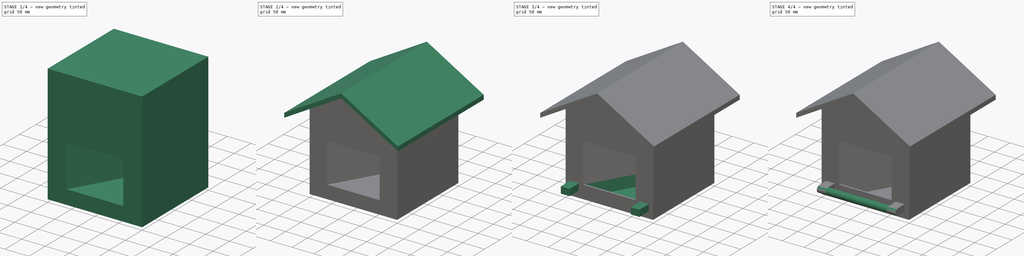
[diagram: build sequence overview — one tinted view per stage of 4, left to right]
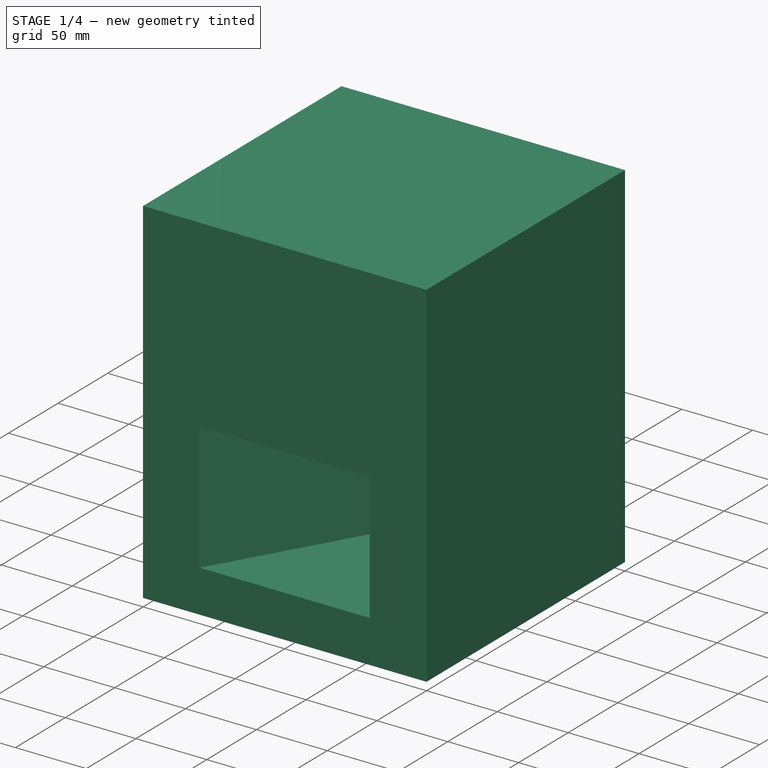
[diagram: stage 1 of 4 — iso view after this stage's code; geometry added in this stage tinted green]
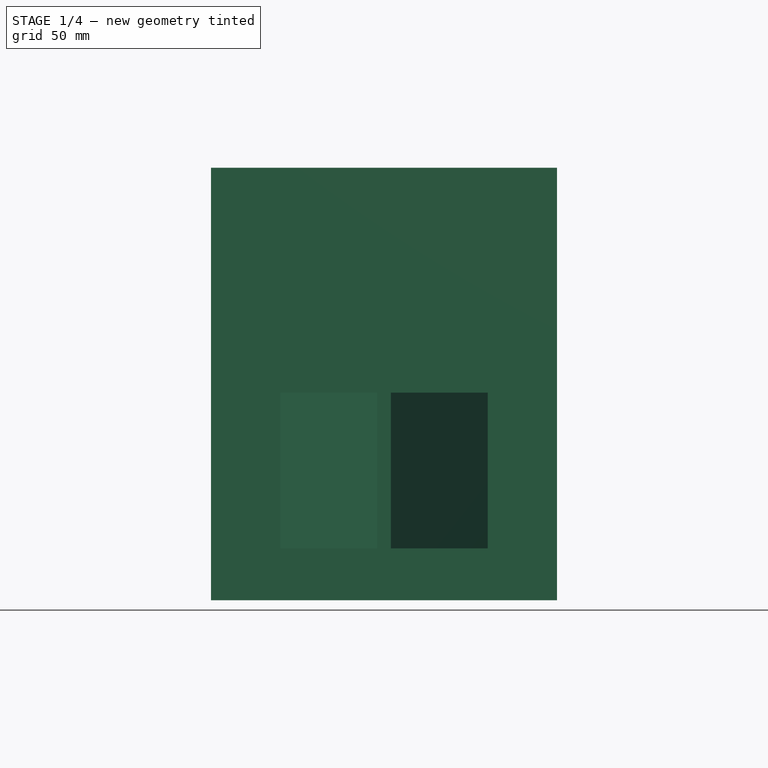
[diagram: stage 1 of 4 — front view after this stage's code; geometry added in this stage tinted green]
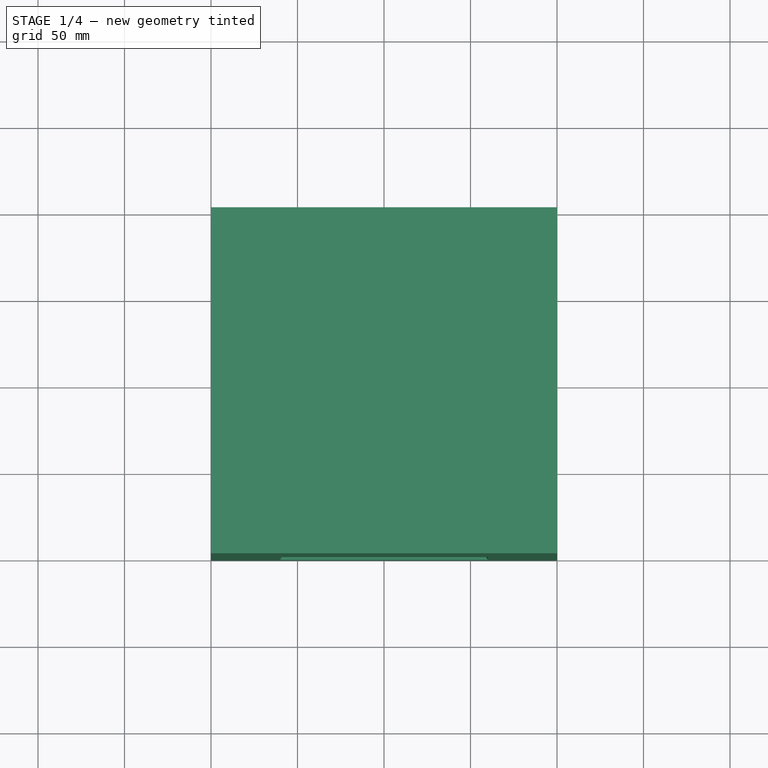
[diagram: stage 1 of 4 — top view after this stage's code; geometry added in this stage tinted green]
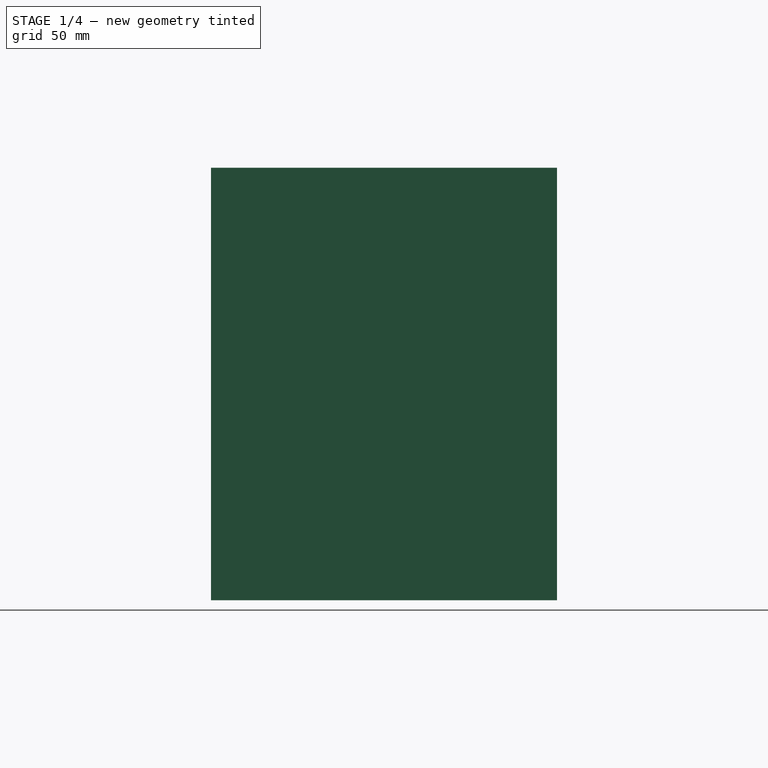
[diagram: stage 1 of 4 — right view after this stage's code; geometry added in this stage tinted green]
FCSTD DOCUMENT  (FreeCAD 0.20R29177 +426 (Git))
Label: concept
License: All rights reserved
LicenseURL: http://en.wikipedia.org/wiki/All_rights_reserved
objects: Sketcher::SketchObject×10, PartDesign::Pocket×7, PartDesign::Pad×6, PartDesign::Body×1
note: 37 computed .brp shape members not serialized (recipe doc carries the construction recipe); baked Part::Feature solids carry a one-line shape summary decoded from their .brp

FEATURE [Sketcher::SketchObject] Sketch
  FullyConstrained = true
  MapMode = 5
  Support = -> [XY_Plane]
  sketch-geometry (4):
    g0: LineSegment StartX=0 StartY=200 StartZ=0 EndX=200 EndY=200 EndZ=0
    g1: LineSegment StartX=200 StartY=200 StartZ=0 EndX=200 EndY=0 EndZ=0
    g2: LineSegment StartX=0 StartY=200 StartZ=0 EndX=0 EndY=0 EndZ=0
    g3: LineSegment StartX=0 StartY=0 StartZ=0 EndX=200 EndY=0 EndZ=0
  constraints (12):
    c: PointOnObject(g0,g-2)
    c: Horizontal(g0)
    c: Coincident(g1,g0)
    c: Vertical(g1)
    c: Coincident(g2,g0)
    c: PointOnObject(g2,g-2)
    c: PointOnObject(g2,g-1)
    c: Horizontal(g1,g2)
    c: DistanceX(g0,g0) = 200
    c: DistanceY(g2,g2) = 200
    c: Coincident(g3,g2)
    c: Coincident(g3,g1)
FEATURE [PartDesign::Pad] Pad
  Direction = (0,0,1)
  Length = 250
  Length2 = 10
  Profile = -> Sketch
  ReferenceAxis = -> Sketch [N_Axis]
  Type = 0
FEATURE [Sketcher::SketchObject] Sketch001
  ExternalGeometry = -> [Pad]
  FullyConstrained = true
  MapMode = 5
  Placement = pos=(0,0,0) rot=(1,0,0;1.5708rad)
  Support = -> [Pad]
  sketch-geometry (5):
    g0: LineSegment StartX=40 StartY=120 StartZ=0 EndX=160 EndY=120 EndZ=0
    g1: LineSegment StartX=160 StartY=120 StartZ=0 EndX=160 EndY=30 EndZ=0
    g2: LineSegment StartX=160 StartY=30 StartZ=0 EndX=40 EndY=30 EndZ=0
    g3: LineSegment StartX=40 StartY=30 StartZ=0 EndX=40 EndY=120 EndZ=0
    g4: LineSegment StartX=100 StartY=250 StartZ=0 EndX=100 EndY=0 EndZ=0
  constraints (14):
    c: Coincident(g0,g1)
    c: Coincident(g1,g2)
    c: Coincident(g2,g3)
    c: Coincident(g3,g0)
    c: Horizontal(g0)
    c: Horizontal(g2)
    c: Vertical(g1)
    c: Vertical(g3)
    c: Symmetric(g-3,g-3,g4)
    c: PointOnObject(g4,g-1)
    c: Symmetric(g0,g0,g4)
    c: DistanceX(g0,g0) = 120
    c: DistanceY(g3,g3) = 90
    c: DistanceY(g-1,g2) = 30
FEATURE [PartDesign::Pocket] Pocket
  BaseFeature = -> Pad
  Direction = (0,1,-2e-16)
  Length = 100
  Length2 = 5
  Profile = -> Sketch001
  ReferenceAxis = -> Sketch001 [N_Axis]
  Type = 0
FEATURE [Sketcher::SketchObject] Sketch005
  ExternalGeometry = -> [Pocket]
  FullyConstrained = true
  MapMode = 5
  Placement = pos=(0,6.6e-15,30) rot=(0,0,1;0rad)
  Support = -> [Pocket]
  sketch-geometry (6):
    g0: LineSegment StartX=40 StartY=0 StartZ=0 EndX=96 EndY=96.9948 EndZ=0
    g1: LineSegment StartX=40 StartY=100 StartZ=0 EndX=40 EndY=0 EndZ=0
    g2: LineSegment StartX=104 StartY=96.9948 StartZ=0 EndX=160 EndY=0 EndZ=0
    g3: LineSegment StartX=160 StartY=0 StartZ=0 EndX=160 EndY=100 EndZ=0
    g4: LineSegment StartX=96 StartY=96.9948 StartZ=0 EndX=104 EndY=96.9948 EndZ=0
    g5: LineSegment StartX=40 StartY=100 StartZ=0 EndX=160 EndY=100 EndZ=0
  constraints (14):
    c: Coincident(g0,g-3)
    c: Coincident(g3,g2)
    c: Coincident(g2,g-3)
    c: Coincident(g0,g1)
    c: Horizontal(g0,g2)
    c: Coincident(g3,g-4)
    c: Coincident(g1,g-4)
    c: Coincident(g4,g0)
    c: Coincident(g4,g2)
    c: DistanceX(g4,g4) = 8
    c: Equal(g0,g2)
    c: Angle(g-3,g0) = 1.0472
    c: Coincident(g5,g1)
    c: Coincident(g5,g3)
FEATURE [PartDesign::Pad] Pad001
  BaseFeature = -> Pocket
  Direction = (0,2e-16,1)
  Length = 90
  Length2 = 10
  Profile = -> Sketch005
  ReferenceAxis = -> Sketch005 [N_Axis]
  Type = 0
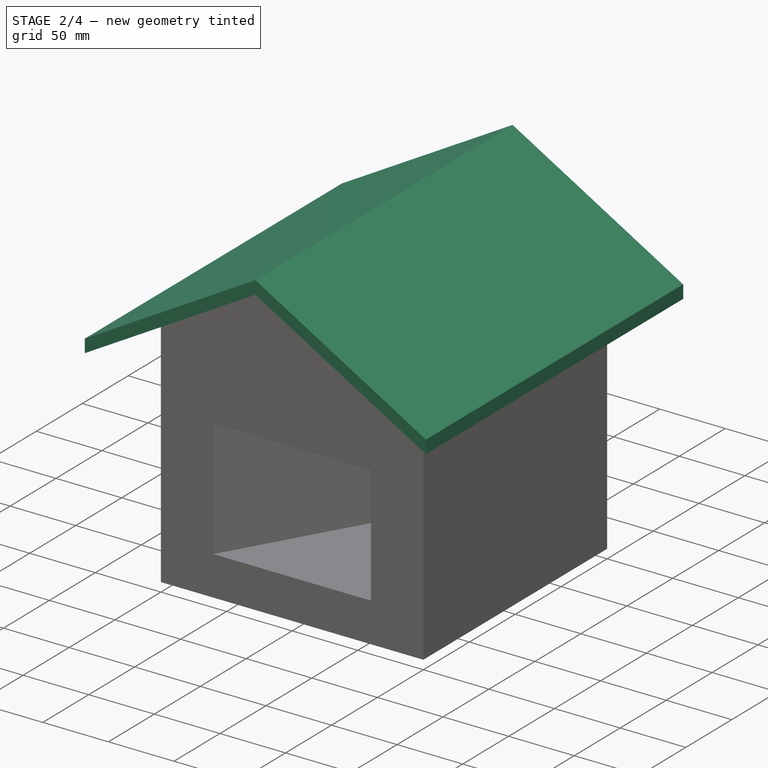
[diagram: stage 2 of 4 — iso view after this stage's code; geometry added in this stage tinted green]
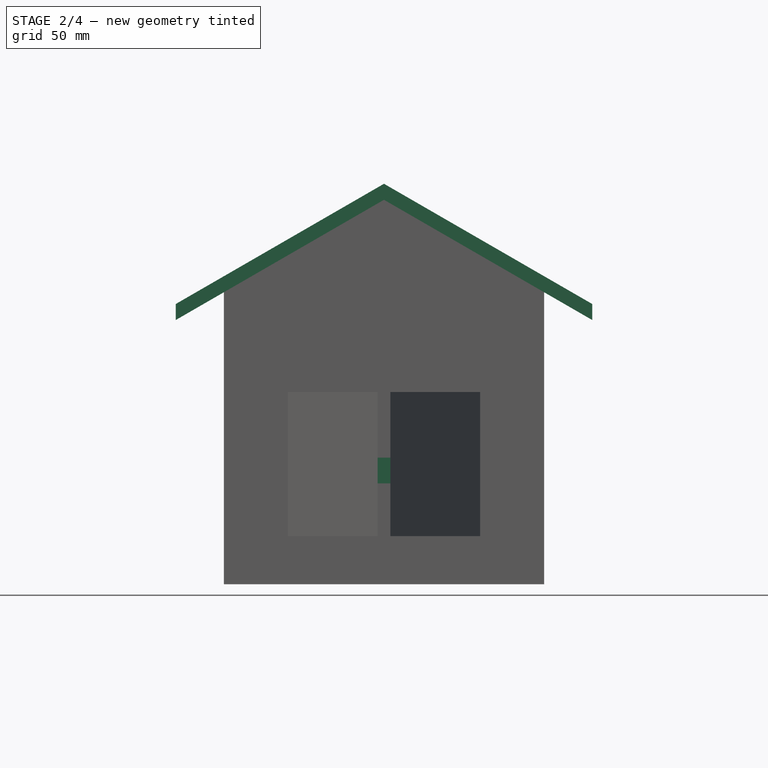
[diagram: stage 2 of 4 — front view after this stage's code; geometry added in this stage tinted green]
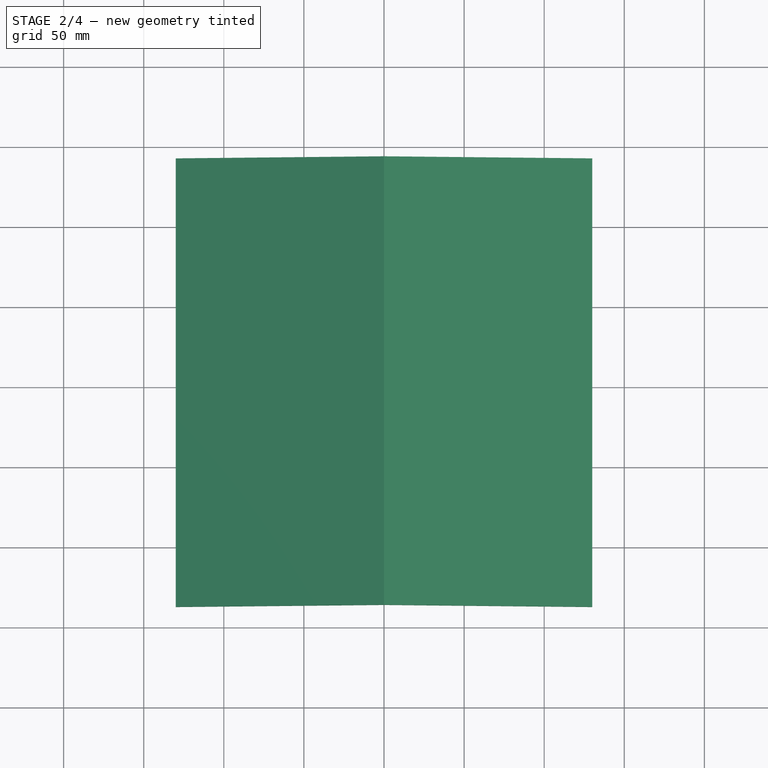
[diagram: stage 2 of 4 — top view after this stage's code; geometry added in this stage tinted green]
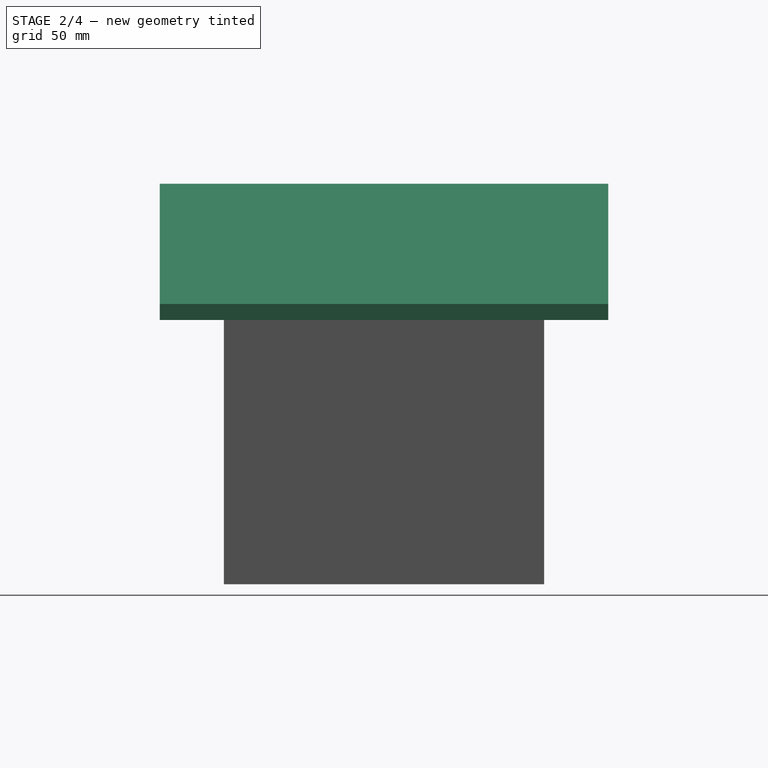
[diagram: stage 2 of 4 — right view after this stage's code; geometry added in this stage tinted green]
FEATURE [Sketcher::SketchObject] Sketch004
  AttachmentOffset = pos=(0,0,40) rot=(0,0,1;0rad)
  FullyConstrained = true
  MapMode = 5
  Placement = pos=(0,-40,8.9e-15) rot=(1,0,0;1.5708rad)
  Support = -> [Pad001,XZ_Plane]
  sketch-geometry (6):
    g0: LineSegment StartX=100 StartY=250 StartZ=0 EndX=-30 EndY=174.944 EndZ=0
    g1: LineSegment StartX=100 StartY=250 StartZ=0 EndX=230 EndY=174.944 EndZ=0
    g2: LineSegment StartX=100 StartY=240 StartZ=0 EndX=-30 EndY=164.944 EndZ=0
    g3: LineSegment StartX=100 StartY=240 StartZ=0 EndX=230 EndY=164.944 EndZ=0
    g4: LineSegment StartX=230 StartY=174.944 StartZ=0 EndX=230 EndY=164.944 EndZ=0
    g5: LineSegment StartX=-30 StartY=164.944 StartZ=0 EndX=-30 EndY=174.944 EndZ=0
  constraints (18):
    c: Coincident(g1,g0)
    c: Horizontal(g0,g1)
    c: Equal(g0,g1)
    c: DistanceX(g0,g-1) = 30
    c: Coincident(g3,g2)
    c: Coincident(g4,g1)
    c: Coincident(g4,g3)
    c: Vertical(g4)
    c: Coincident(g5,g2)
    c: Coincident(g5,g0)
    c: Vertical(g5)
    c: Equal(g4,g5)
    c: Vertical(g0,g2)
    c: Equal(g2,g0)
    c: DistanceY(g4,g4) = 10
    c: DistanceY(g-1,g0) = 250
    c: DistanceX(g2,g3) = 260
    c: Angle(g-2,g0) = 2.0944
FEATURE [PartDesign::Pad] Pad002
  BaseFeature = -> Pad001
  Direction = (0,-1,2e-16)
  Length = 280
  Length2 = 10
  Profile = -> Sketch004
  ReferenceAxis = -> Sketch004 [N_Axis]
  Reversed = true
  Type = 0
FEATURE [PartDesign::Pocket] Pocket001
  BaseFeature = -> Pad002
  Direction = (0,1,0)
  Length = 5
  Length2 = 5
  Profile = -> Pad002 [Face24,Face21]
  Type = 1
FEATURE [Sketcher::SketchObject] Sketch006
  ExternalGeometry = -> [Pocket001]
  FullyConstrained = true
  MapMode = 5
  Placement = pos=(0,96.9948,-2.13e-14) rot=(1,0,0;1.5708rad)
  Support = -> [Pocket001]
  sketch-geometry (6):
    g0: LineSegment StartX=96 StartY=79 StartZ=0 EndX=104 EndY=79 EndZ=0
    g1: LineSegment StartX=104 StartY=79 StartZ=0 EndX=104 EndY=63 EndZ=0
    g2: LineSegment StartX=104 StartY=63 StartZ=0 EndX=96 EndY=63 EndZ=0
    g3: LineSegment StartX=96 StartY=63 StartZ=0 EndX=96 EndY=79 EndZ=0
    g4: LineSegment StartX=96 StartY=71 StartZ=0 EndX=104 EndY=71 EndZ=0
    g5: LineSegment StartX=96 StartY=75 StartZ=0 EndX=104 EndY=75 EndZ=0
  constraints (17):
    c: Coincident(g0,g1)
    c: Coincident(g1,g2)
    c: Coincident(g2,g3)
    c: Coincident(g3,g0)
    c: Horizontal(g0)
    c: Horizontal(g2)
    c: Vertical(g1)
    c: Vertical(g3)
    c: DistanceY(g3,g3) = 16
    c: DistanceX(g0,g0) = 8
    c: PointOnObject(g4,g1)
    c: Horizontal(g4)
    c: PointOnObject(g5,g1)
    c: Horizontal(g5)
    c: Symmetric(g0,g2,g4)
    c: Symmetric(g0,g4,g5)
    c: Symmetric(g-3,g-3,g5)
FEATURE [PartDesign::Pocket] Pocket002
  BaseFeature = -> Pocket001
  Direction = (0,1,-2e-16)
  Length = 4
  Length2 = 5
  Profile = -> Sketch006
  ReferenceAxis = -> Sketch006 [N_Axis]
  Type = 0
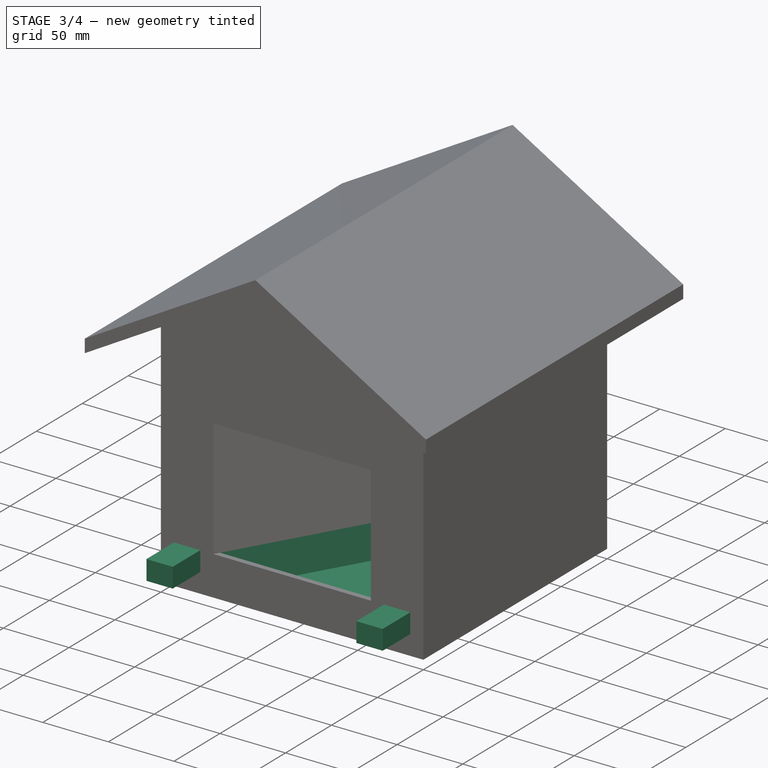
[diagram: stage 3 of 4 — iso view after this stage's code; geometry added in this stage tinted green]
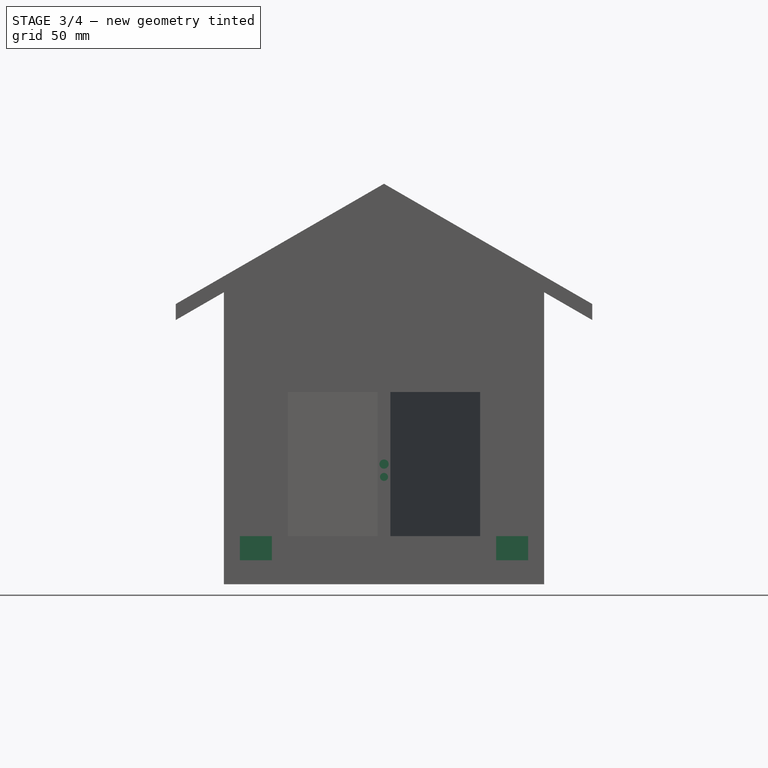
[diagram: stage 3 of 4 — front view after this stage's code; geometry added in this stage tinted green]
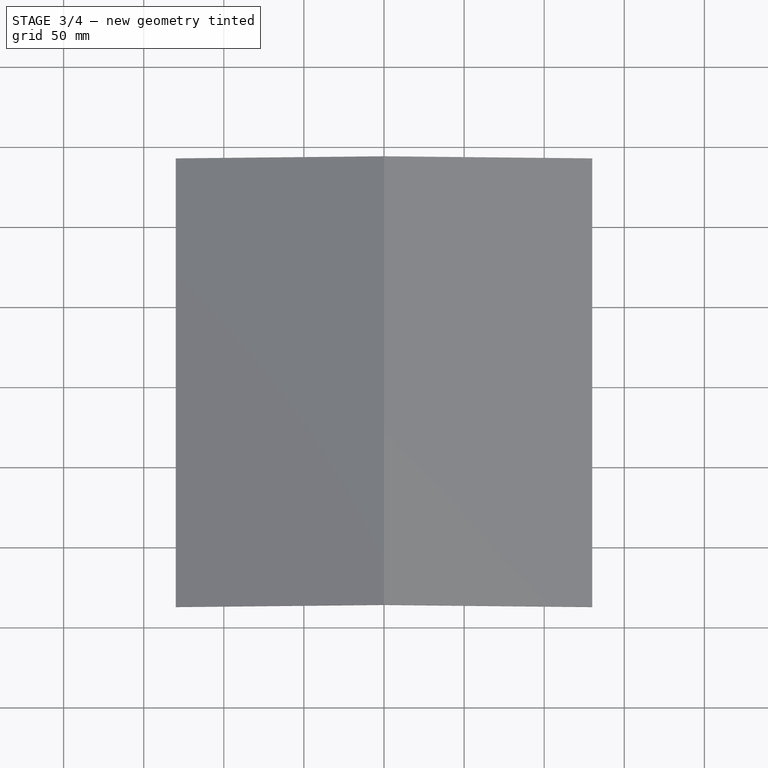
[diagram: stage 3 of 4 — top view after this stage's code; geometry added in this stage tinted green]
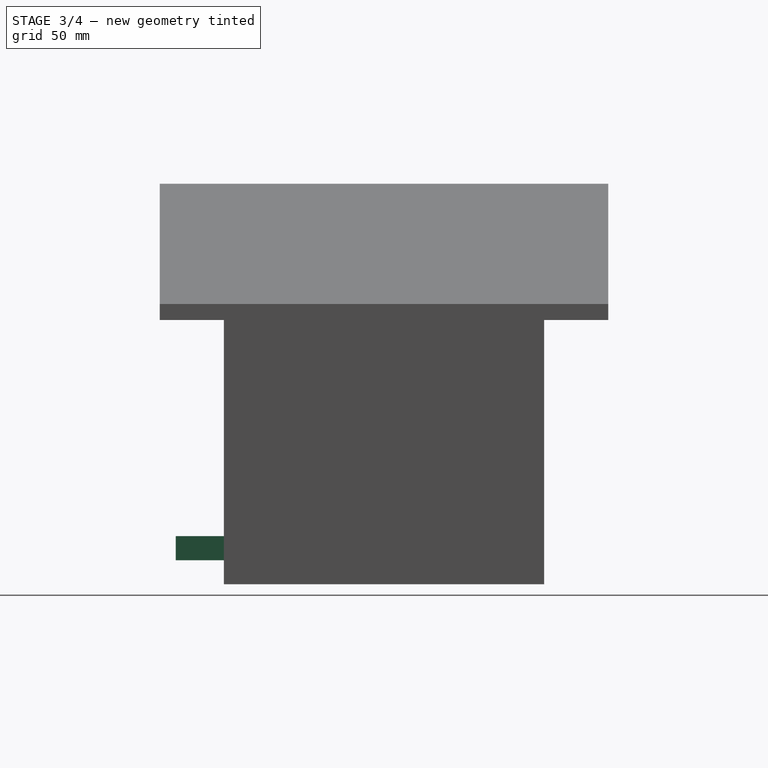
[diagram: stage 3 of 4 — right view after this stage's code; geometry added in this stage tinted green]
FEATURE [Sketcher::SketchObject] Sketch007
  ExternalGeometry = -> [Pocket002]
  FullyConstrained = true
  MapMode = 5
  Placement = pos=(0,100.995,0) rot=(1,0,0;1.5708rad)
  Support = -> [Pocket002]
  sketch-geometry (2):
    g0: Circle CenterX=100 CenterY=75 CenterZ=0 NormalX=0 NormalY=0 NormalZ=1 AngleXU=0 Radius=2.875
    g1: Circle CenterX=100 CenterY=67 CenterZ=0 NormalX=0 NormalY=0 NormalZ=1 AngleXU=0 Radius=2.5
  constraints (6):
    c: DistanceX(g-3,g0) = 4
    c: Vertical(g0,g1)
    c: Diameter(g0) = 5.75
    c: DistanceY(g0,g-3) = 4
    c: DistanceY(g1,g0) = 8
    c: Diameter(g1) = 5
FEATURE [PartDesign::Pad] Pad003
  BaseFeature = -> Pocket002
  Direction = (0,-1,2e-16)
  Length = 4
  Length2 = 10
  Profile = -> Sketch007
  ReferenceAxis = -> Sketch007 [N_Axis]
  Type = 0
FEATURE [Sketcher::SketchObject] Sketch008
  ExternalGeometry = -> [Pad003]
  FullyConstrained = true
  MapMode = 5
  Placement = pos=(0,6.6e-15,30) rot=(0,0,1;0rad)
  Support = -> [Pad003]
  sketch-geometry (4):
    g0: LineSegment StartX=42.3094 StartY=4 StartZ=0 EndX=157.691 EndY=4 EndZ=0
    g1: LineSegment StartX=96 StartY=96.9948 StartZ=0 EndX=104 EndY=96.9948 EndZ=0
    g2: LineSegment StartX=104 StartY=96.9948 StartZ=0 EndX=157.691 EndY=4 EndZ=0
    g3: LineSegment StartX=42.3094 StartY=4 StartZ=0 EndX=96 EndY=96.9948 EndZ=0
  constraints (10):
    c: PointOnObject(g0,g-4)
    c: PointOnObject(g0,g-3)
    c: Horizontal(g0)
    c: Coincident(g1,g-4)
    c: Coincident(g1,g-3)
    c: Coincident(g2,g1)
    c: Coincident(g2,g0)
    c: Coincident(g3,g0)
    c: Coincident(g3,g1)
    c: DistanceY(g-3,g0) = 4
FEATURE [PartDesign::Pocket] Pocket003
  BaseFeature = -> Pad003
  Direction = (0,-2e-16,-1)
  Length = 26
  Length2 = 5
  Profile = -> Sketch008
  ReferenceAxis = -> Sketch008 [N_Axis]
  Type = 0
FEATURE [Sketcher::SketchObject] Sketch009
  ExternalGeometry = -> [Pocket003]
  FullyConstrained = true
  MapMode = 5
  Placement = pos=(0,2.64e-14,120) rot=(1,0,0;3.14159rad)
  Support = -> [Pocket003]
  sketch-geometry (6):
    g0: LineSegment StartX=90 StartY=-20 StartZ=0 EndX=110 EndY=-20 EndZ=0
    g1: LineSegment StartX=110 StartY=-20 StartZ=0 EndX=110 EndY=-40 EndZ=0
    g2: LineSegment StartX=110 StartY=-40 StartZ=0 EndX=90 EndY=-40 EndZ=0
    g3: LineSegment StartX=90 StartY=-40 StartZ=0 EndX=90 EndY=-20 EndZ=0
    g4: GeomPoint X=100 Y=-20 Z=0
    g5: LineSegment StartX=100 StartY=0 StartZ=0 EndX=100 EndY=-96.9948 EndZ=0
  constraints (16):
    c: Coincident(g0,g1)
    c: Coincident(g1,g2)
    c: Coincident(g2,g3)
    c: Coincident(g3,g0)
    c: Horizontal(g0)
    c: Horizontal(g2)
    c: Vertical(g1)
    c: Vertical(g3)
    c: Symmetric(g0,g0,g4)
    c: PointOnObject(g5,g-4)
    c: Vertical(g5)
    c: Symmetric(g-3,g-3,g5)
    c: PointOnObject(g4,g5)
    c: DistanceY(g3,g3) = 20
    c: Equal(g0,g3)
    c: DistanceY(g0,g5) = 20
FEATURE [PartDesign::Pocket] Pocket004
  BaseFeature = -> Pocket003
  Direction = (0,2e-16,1)
  Length = 20
  Length2 = 5
  Profile = -> Sketch009
  ReferenceAxis = -> Sketch009 [N_Axis]
  Type = 0
FEATURE [Sketcher::SketchObject] Sketch010
  FullyConstrained = true
  MapMode = 5
  Placement = pos=(0,0,0) rot=(1,0,0;1.5708rad)
  Support = -> [Pocket004]
  sketch-geometry (8):
    g0: LineSegment StartX=10 StartY=30 StartZ=0 EndX=30 EndY=30 EndZ=0
    g1: LineSegment StartX=30 StartY=30 StartZ=0 EndX=30 EndY=15 EndZ=0
    g2: LineSegment StartX=30 StartY=15 StartZ=0 EndX=10 EndY=15 EndZ=0
    g3: LineSegment StartX=10 StartY=15 StartZ=0 EndX=10 EndY=30 EndZ=0
    g4: LineSegment StartX=170 StartY=30 StartZ=0 EndX=190 EndY=30 EndZ=0
    g5: LineSegment StartX=190 StartY=30 StartZ=0 EndX=190 EndY=15 EndZ=0
    g6: LineSegment StartX=190 StartY=15 StartZ=0 EndX=170 EndY=15 EndZ=0
    g7: LineSegment StartX=170 StartY=15 StartZ=0 EndX=170 EndY=30 EndZ=0
  constraints (24):
    c: Coincident(g0,g1)
    c: Coincident(g1,g2)
    c: Coincident(g2,g3)
    c: Coincident(g3,g0)
    c: Horizontal(g0)
    c: Horizontal(g2)
    c: Vertical(g1)
    c: Vertical(g3)
    c: DistanceX(g0,g0) = 20
    c: DistanceY(g3,g3) = 15
    c: DistanceX(g-1,g2) = 10
    c: DistanceY(g-1,g2) = 15
    c: Coincident(g4,g5)
    c: Coincident(g5,g6)
    c: Coincident(g6,g7)
    c: Coincident(g7,g4)
    c: Horizontal(g4)
    c: Horizontal(g6)
    c: Vertical(g5)
    c: Vertical(g7)
    c: Equal(g4,g0)
    c: Equal(g1,g7)
    c: DistanceX(g-1,g6) = 170
    c: Horizontal(g4,g0)
FEATURE [PartDesign::Pad] Pad004
  BaseFeature = -> Pocket004
  Direction = (0,-1,2e-16)
  Length = 30
  Length2 = 10
  Profile = -> Sketch010
  ReferenceAxis = -> Sketch010 [N_Axis]
  Type = 0
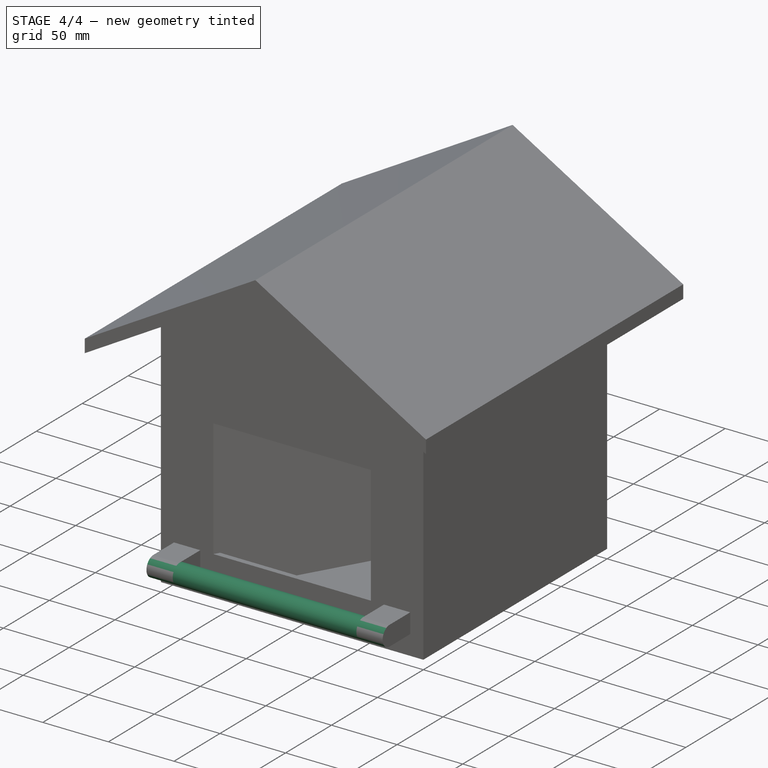
[diagram: stage 4 of 4 — iso view after this stage's code; geometry added in this stage tinted green]
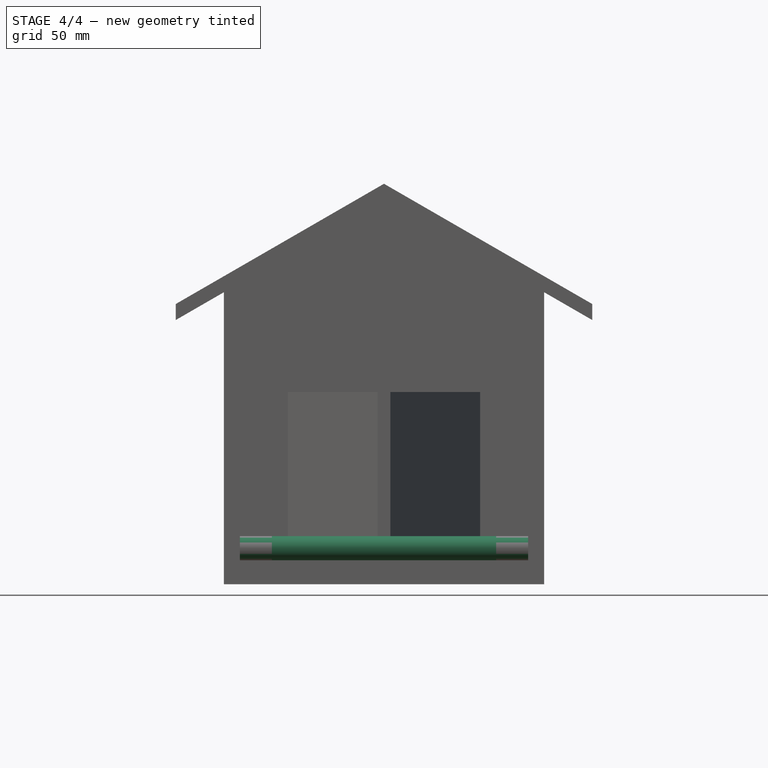
[diagram: stage 4 of 4 — front view after this stage's code; geometry added in this stage tinted green]
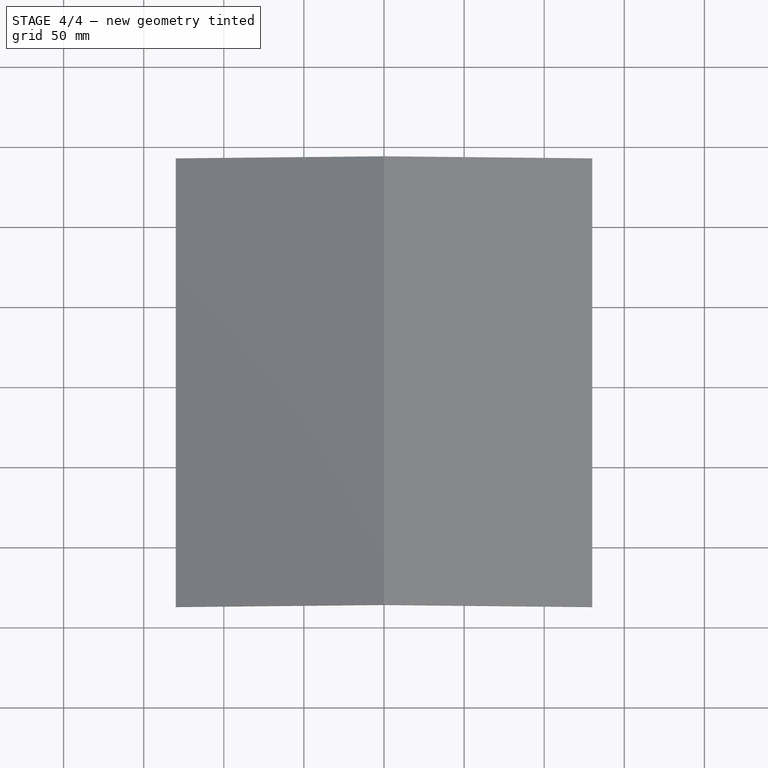
[diagram: stage 4 of 4 — top view after this stage's code; geometry added in this stage tinted green]
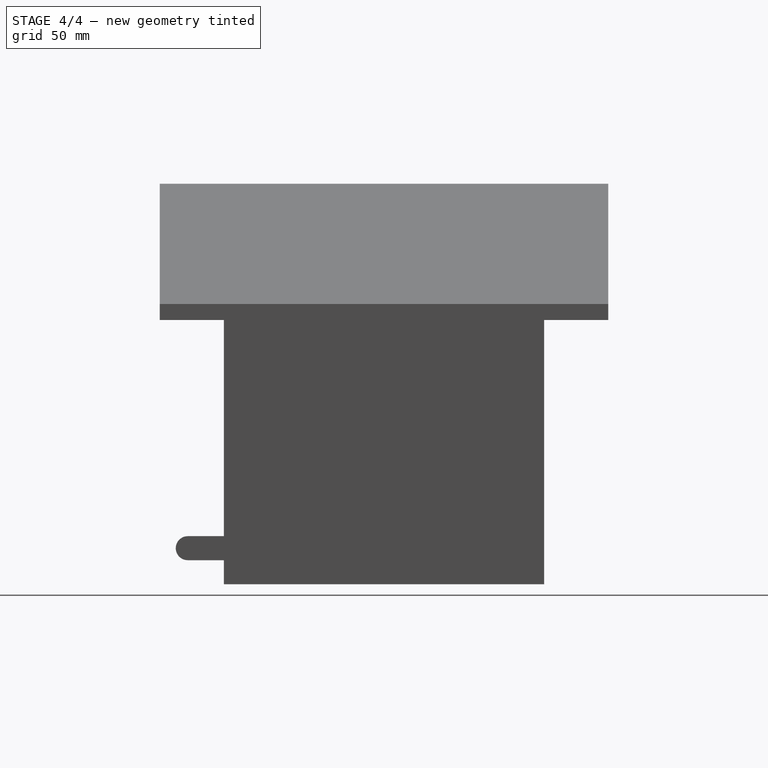
[diagram: stage 4 of 4 — right view after this stage's code; geometry added in this stage tinted green]
FEATURE [Sketcher::SketchObject] Sketch011
  ExternalGeometry = -> [Pad004]
  FullyConstrained = true
  MapMode = 5
  Placement = pos=(30,0,0) rot=(0.57735,0.57735,0.57735;2.0944rad)
  Support = -> [Pad004]
  sketch-geometry (1):
    g0: Circle CenterX=-22.5 CenterY=22.5 CenterZ=0 NormalX=0 NormalY=0 NormalZ=1 AngleXU=0 Radius=7.5
  constraints (3):
    c: Diameter(g0) = 15
    c: DistanceX(g-3,g0) = 7.5
    c: DistanceY(g0,g-3) = 7.5
FEATURE [PartDesign::Pad] Pad005
  BaseFeature = -> Pad004
  Direction = (1,0,0)
  Length = 140
  Length2 = 10
  Profile = -> Sketch011
  ReferenceAxis = -> Sketch011 [N_Axis]
  Type = 0
FEATURE [PartDesign::Pocket] Pocket005
  BaseFeature = -> Pad005
  Direction = (1,0,0)
  Length = 5
  Length2 = 5
  Profile = -> Pad005 [Face43,Face45]
  Type = 1
FEATURE [PartDesign::Pocket] Pocket006
  BaseFeature = -> Pocket005
  Direction = (-1,0,0)
  Length = 5
  Length2 = 5
  Profile = -> Pocket005 [Face39,Face42]
  Type = 1
FEATURE [PartDesign::Body] Body
  Group = -> [Sketch,Pad,Sketch001,Sketch004,Pocket,Sketch005,Pad001,Pad002,Pocket001,Sketch006,Pocket002,Sketch007,Pad003,Sketch008,Pocket003,Sketch009,Pocket004,Sketch010,Pad004,Sketch011,Pad005,Pocket005,Pocket006]
  Origin = -> Origin
  Tip = -> Pocket006
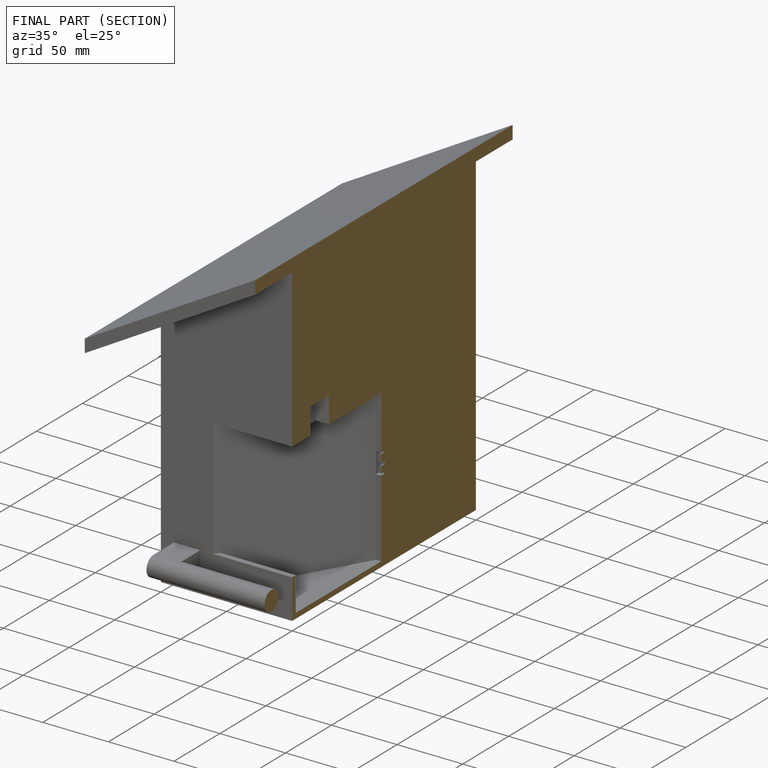
[diagram: finished part — half-section view (interior)]
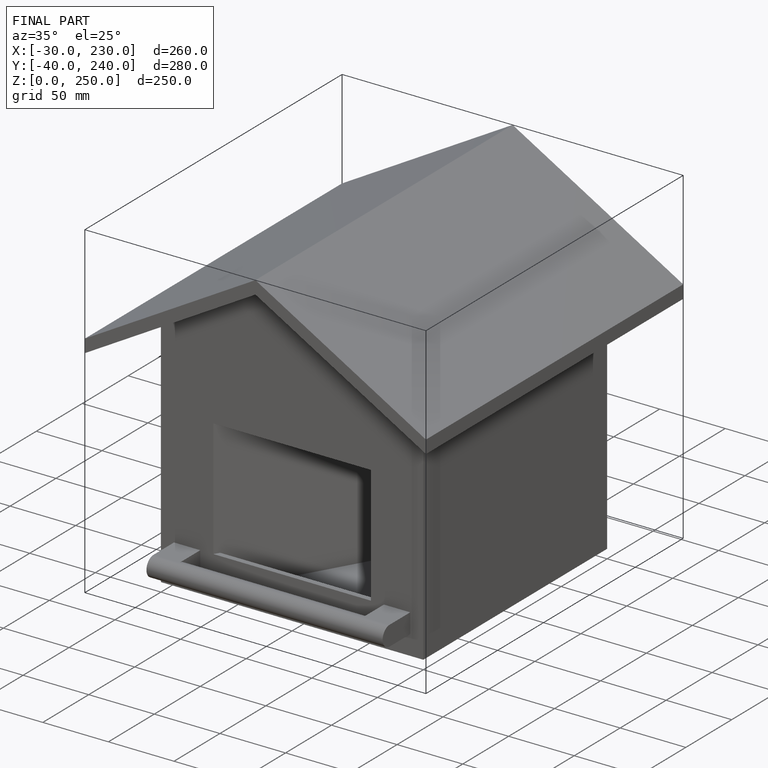
[diagram: finished part — iso view with bounding-box wireframe]
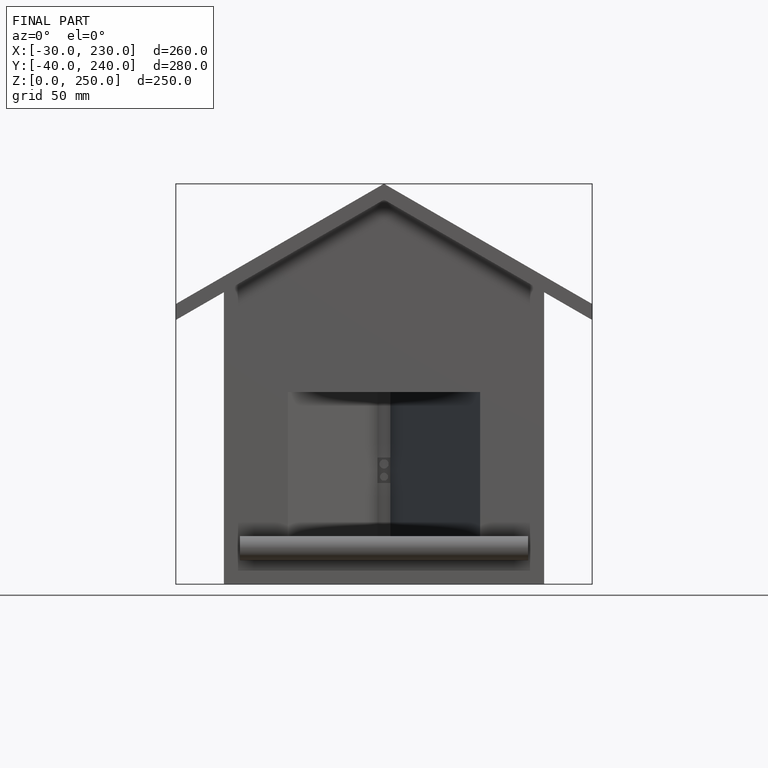
[diagram: finished part — front view with bounding-box wireframe]
